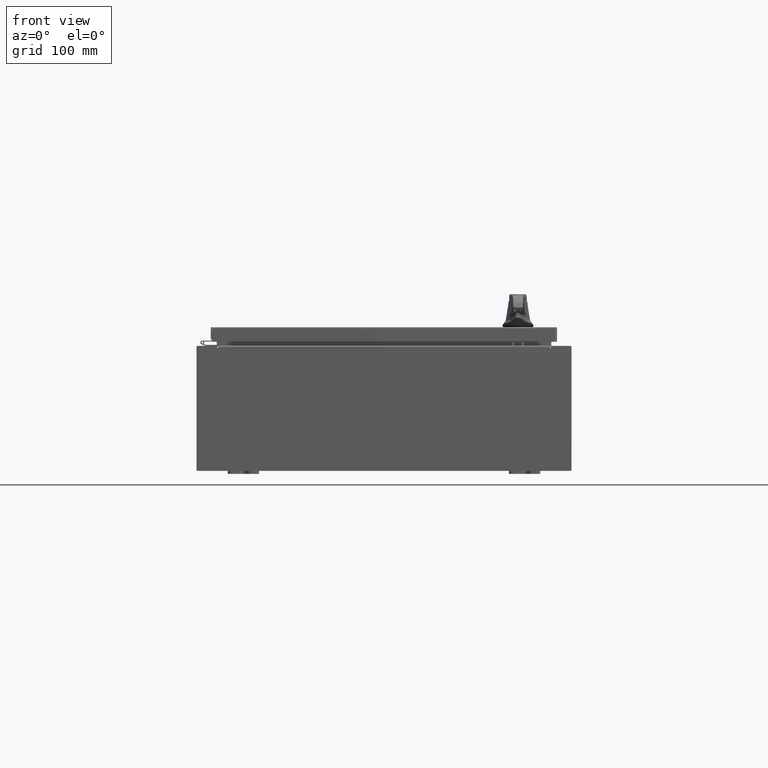
[diagram: clean part render]
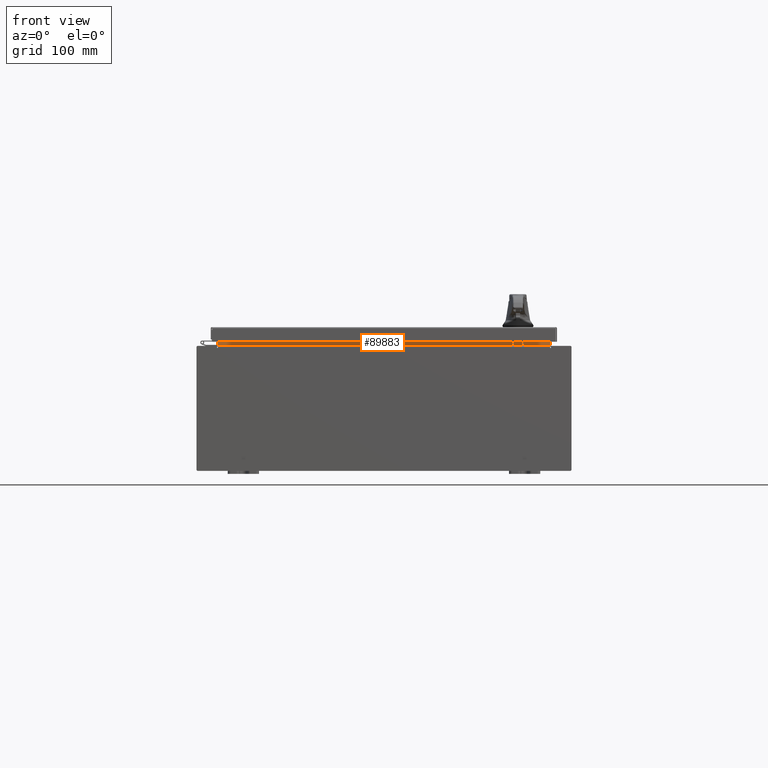
[diagram: same view with one face highlighted and labeled with its STEP entity id]
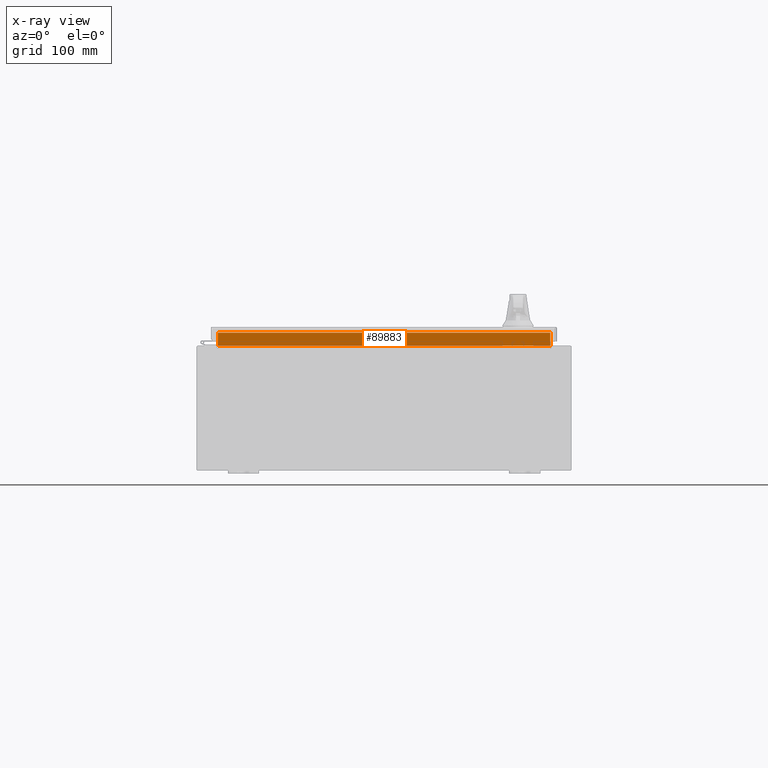
[diagram: x-ray of the same camera — body ghosted, the highlighted face saturated]
A machine part, front view. The second image highlights one B-rep face of the part: STEP entity #89883.
The next image is the same camera in x-ray: the body ghosted, the highlighted face saturated — about 0% of this face is hidden behind the body in this view.
In plain terms, the highlighted planar face has unit normal (0, -1, 0).
Its self-contained STEP definition (entity closure, byte-faithful):
#6675 = VECTOR ( 'NONE', #48110, 39.37007874015748100 ) ;
#9918 = CARTESIAN_POINT ( 'NONE',  ( 10.63720000000000400, -1.300299999999999800, 4.013000000000003500 ) ) ;
#12654 = EDGE_CURVE ( 'NONE', #85767, #63884, #59584, .T. ) ;
#20913 = DIRECTION ( 'NONE',  ( 0.0000000000000000000, 1.000000000000000000, 0.0000000000000000000 ) ) ;
#24285 = LINE ( 'NONE', #48028, #118606 ) ;
#24698 = CARTESIAN_POINT ( 'NONE',  ( 10.63720000000000200, -1.300299999999999800, 4.837600000000003700 ) ) ;
#32256 = DIRECTION ( 'NONE',  ( -1.000000000000000000, -0.0000000000000000000, -0.0000000000000000000 ) ) ;
#35178 = EDGE_LOOP ( 'NONE', ( #96113, #60523, #58678, #65853 ) ) ;
#35468 = CARTESIAN_POINT ( 'NONE',  ( -10.63720000000000400, -1.300299999999999800, 4.013000000000003500 ) ) ;
#36210 = LINE ( 'NONE', #104347, #108374 ) ;
#36809 = CARTESIAN_POINT ( 'NONE',  ( -10.63720000000000200, -1.300299999999999800, 4.000000000000004400 ) ) ;
#38532 = DIRECTION ( 'NONE',  ( -0.0000000000000000000, -0.0000000000000000000, 1.000000000000000000 ) ) ;
#48028 = CARTESIAN_POINT ( 'NONE',  ( 10.63720000000000200, -1.300299999999999800, 4.925300000000004500 ) ) ;
#48110 = DIRECTION ( 'NONE',  ( 1.000000000000000000, 0.0000000000000000000, -2.568202152506545800E-017 ) ) ;
#48323 = EDGE_CURVE ( 'NONE', #75266, #112757, #24285, .T. ) ;
#55474 = AXIS2_PLACEMENT_3D ( 'NONE', #67970, #20913, #86858 ) ;
#57173 = CARTESIAN_POINT ( 'NONE',  ( -10.63720000000000200, -1.300299999999999800, 4.013000000000003500 ) ) ;
#57687 = PLANE ( 'NONE',  #55474 ) ;
#58678 = ORIENTED_EDGE ( 'NONE', *, *, #48323, .F. ) ;
#59584 = LINE ( 'NONE', #36809, #106611 ) ;
#60079 = EDGE_CURVE ( 'NONE', #63884, #75266, #84716, .T. ) ;
#60523 = ORIENTED_EDGE ( 'NONE', *, *, #78588, .F. ) ;
#63884 = VERTEX_POINT ( 'NONE', #35468 ) ;
#64888 = FACE_OUTER_BOUND ( 'NONE', #35178, .T. ) ;
#65853 = ORIENTED_EDGE ( 'NONE', *, *, #60079, .F. ) ;
#67970 = CARTESIAN_POINT ( 'NONE',  ( 0.0000000000000000000, -1.300299999999999800, 0.0000000000000000000 ) ) ;
#75266 = VERTEX_POINT ( 'NONE', #9918 ) ;
#78588 = EDGE_CURVE ( 'NONE', #112757, #85767, #36210, .T. ) ;
#83730 = CARTESIAN_POINT ( 'NONE',  ( -10.63720000000000200, -1.300299999999999300, 4.837600000000003700 ) ) ;
#84716 = LINE ( 'NONE', #57173, #6675 ) ;
#85767 = VERTEX_POINT ( 'NONE', #83730 ) ;
#86858 = DIRECTION ( 'NONE',  ( 0.0000000000000000000, -0.0000000000000000000, 1.000000000000000000 ) ) ;
#89883 = ADVANCED_FACE ( 'NONE', ( #64888 ), #57687, .T. ) ;
#96113 = ORIENTED_EDGE ( 'NONE', *, *, #12654, .F. ) ;
#103483 = DIRECTION ( 'NONE',  ( -0.0000000000000000000, -0.0000000000000000000, -1.000000000000000000 ) ) ;
#104347 = CARTESIAN_POINT ( 'NONE',  ( 10.63720000000000200, -1.300299999999999300, 4.837600000000003700 ) ) ;
#106611 = VECTOR ( 'NONE', #103483, 39.37007874015748100 ) ;
#108374 = VECTOR ( 'NONE', #32256, 39.37007874015748100 ) ;
#112757 = VERTEX_POINT ( 'NONE', #24698 ) ;
#118606 = VECTOR ( 'NONE', #38532, 39.37007874015748100 ) ;